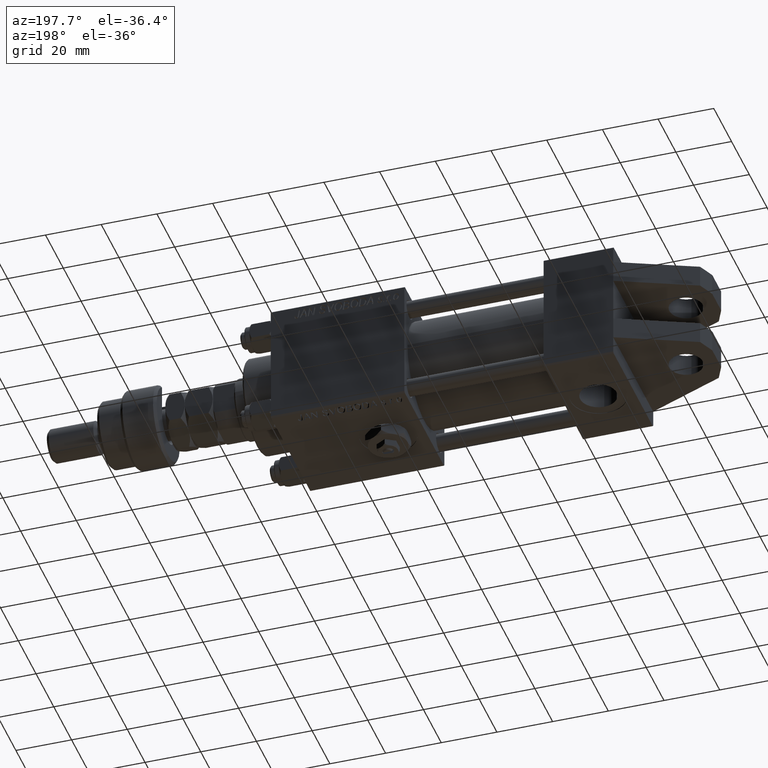
[diagram: clean part render]
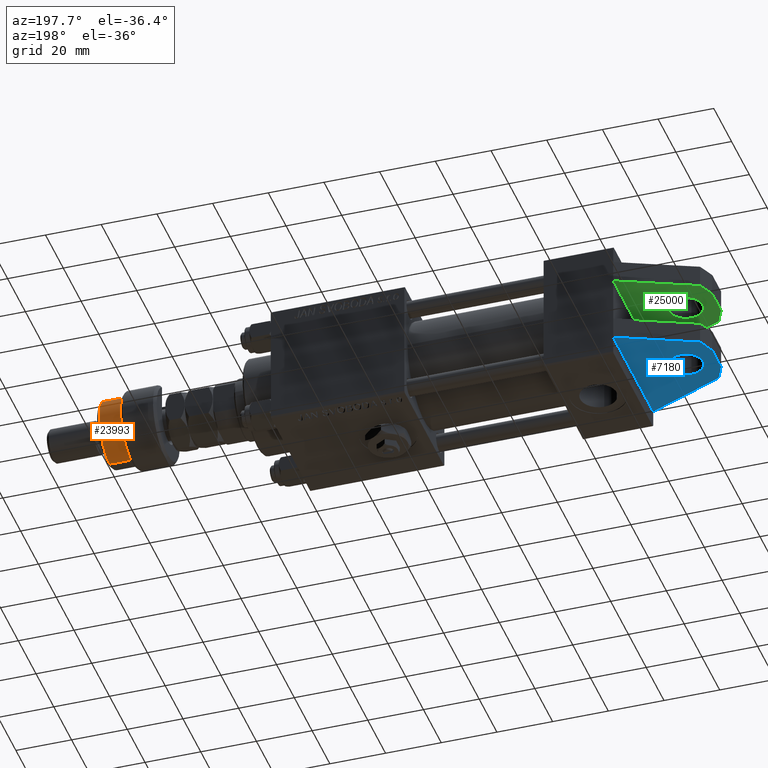
[diagram: same view with three faces highlighted in distinct colors, each labeled with its STEP entity id]
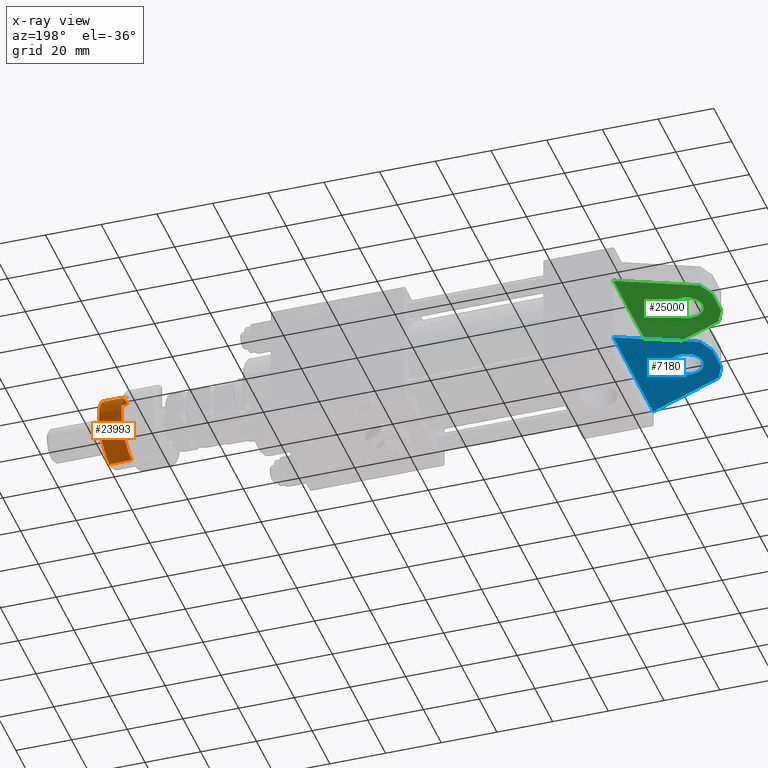
[diagram: x-ray of the same camera — body ghosted, the three highlighted faces saturated]
A machine part, auxiliary view with three faces highlighted in distinct colors.
The next image is the same camera in x-ray (body ghosted, the three faces saturated) — at least one of them is partly hidden behind the body in this view.
Their STEP definitions:

[orange] entity #23993 — the highlighted cylindrical surface (edge-blend (fillet) strip) has radius 12 mm, axis along (-1, -0, 0).
#3000 = DIRECTION ( 'NONE',  ( -1.000000000000000000, 0.000000000000000000, 0.000000000000000000 ) ) ;
#3278 = CARTESIAN_POINT ( 'NONE',  ( -12.00000000000000178, 0.000000000000000000, 14.50000000000000000 ) ) ;
#6423 = EDGE_CURVE ( 'NONE', #40618, #46117, #26278, .T. ) ;
#7847 = DIRECTION ( 'NONE',  ( 0.000000000000000000, 0.000000000000000000, 1.000000000000000000 ) ) ;
#8239 = CARTESIAN_POINT ( 'NONE',  ( -12.00000000000000178, 0.000000000000000000, 22.00000000000000000 ) ) ;
#8815 = ORIENTED_EDGE ( 'NONE', *, *, #39315, .T. ) ;
#10724 = CARTESIAN_POINT ( 'NONE',  ( 0.000000000000000000, 0.000000000000000000, 14.50000000000000000 ) ) ;
#12662 = EDGE_CURVE ( 'NONE', #51985, #25217, #40351, .T. ) ;
#12929 = VECTOR ( 'NONE', #46943, 1000.000000000000000 ) ;
#13317 = AXIS2_PLACEMENT_3D ( 'NONE', #41109, #33403, #50195 ) ;
#15080 = EDGE_CURVE ( 'NONE', #27127, #40618, #45705, .T. ) ;
#16241 = DIRECTION ( 'NONE',  ( -0.000000000000000000, -0.000000000000000000, -1.000000000000000000 ) ) ;
#17557 = AXIS2_PLACEMENT_3D ( 'NONE', #29369, #7847, #53884 ) ;
#19028 = CARTESIAN_POINT ( 'NONE',  ( 12.00000000000000178, 1.469576158976824144E-15, 20.99999999999998224 ) ) ;
#19768 = AXIS2_PLACEMENT_3D ( 'NONE', #10724, #40773, #3000 ) ;
#19875 = ORIENTED_EDGE ( 'NONE', *, *, #6423, .T. ) ;
#23442 = DIRECTION ( 'NONE',  ( -0.000000000000000000, -0.000000000000000000, -1.000000000000000000 ) ) ;
#23993 = ADVANCED_FACE ( 'NONE', ( #50469 ), #24859, .T. ) ;
#24302 = EDGE_CURVE ( 'NONE', #51985, #26829, #49850, .T. ) ;
#24859 = CYLINDRICAL_SURFACE ( 'NONE', #13317, 12.00000000000000178 ) ;
#25217 = VERTEX_POINT ( 'NONE', #19028 ) ;
#26131 = CARTESIAN_POINT ( 'NONE',  ( 12.00000000000000178, 1.469576158976824144E-15, 13.00000000000000000 ) ) ;
#26278 = LINE ( 'NONE', #50539, #12929 ) ;
#26829 = VERTEX_POINT ( 'NONE', #3278 ) ;
#27127 = VERTEX_POINT ( 'NONE', #26131 ) ;
#29192 = ORIENTED_EDGE ( 'NONE', *, *, #15080, .T. ) ;
#29200 = DIRECTION ( 'NONE',  ( 1.000000000000000000, 0.000000000000000000, 0.000000000000000000 ) ) ;
#29369 = CARTESIAN_POINT ( 'NONE',  ( 0.000000000000000000, 0.000000000000000000, 13.00000000000000000 ) ) ;
#31382 = EDGE_CURVE ( 'NONE', #26829, #46117, #36496, .T. ) ;
#32208 = ORIENTED_EDGE ( 'NONE', *, *, #12662, .T. ) ;
#33403 = DIRECTION ( 'NONE',  ( -0.000000000000000000, -0.000000000000000000, -1.000000000000000000 ) ) ;
#34777 = LINE ( 'NONE', #47425, #53399 ) ;
#36496 = CIRCLE ( 'NONE', #19768, 12.00000000000000178 ) ;
#37882 = EDGE_LOOP ( 'NONE', ( #32208, #8815, #29192, #19875, #39189, #52145 ) ) ;
#38627 = AXIS2_PLACEMENT_3D ( 'NONE', #45984, #41852, #29200 ) ;
#39189 = ORIENTED_EDGE ( 'NONE', *, *, #31382, .F. ) ;
#39315 = EDGE_CURVE ( 'NONE', #25217, #27127, #34777, .T. ) ;
#40351 = CIRCLE ( 'NONE', #38627, 12.00000000000000178 ) ;
#40618 = VERTEX_POINT ( 'NONE', #51219 ) ;
#40674 = VECTOR ( 'NONE', #16241, 1000.000000000000000 ) ;
#40773 = DIRECTION ( 'NONE',  ( 0.000000000000000000, 0.000000000000000000, -1.000000000000000000 ) ) ;
#41109 = CARTESIAN_POINT ( 'NONE',  ( 0.000000000000000000, 0.000000000000000000, 22.00000000000000000 ) ) ;
#41852 = DIRECTION ( 'NONE',  ( 0.000000000000000000, 0.000000000000000000, -1.000000000000000000 ) ) ;
#45705 = CIRCLE ( 'NONE', #17557, 12.00000000000000178 ) ;
#45984 = CARTESIAN_POINT ( 'NONE',  ( 0.000000000000000000, 0.000000000000000000, 20.99999999999998224 ) ) ;
#46117 = VERTEX_POINT ( 'NONE', #53810 ) ;
#46943 = DIRECTION ( 'NONE',  ( 0.000000000000000000, 0.000000000000000000, 1.000000000000000000 ) ) ;
#47425 = CARTESIAN_POINT ( 'NONE',  ( 12.00000000000000178, 1.469576158976824144E-15, 22.00000000000000000 ) ) ;
#49850 = LINE ( 'NONE', #8239, #40674 ) ;
#50195 = DIRECTION ( 'NONE',  ( -1.000000000000000000, 0.000000000000000000, 0.000000000000000000 ) ) ;
#50469 = FACE_OUTER_BOUND ( 'NONE', #37882, .T. ) ;
#50539 = CARTESIAN_POINT ( 'NONE',  ( -10.39230484541326760, 6.000000000000000000, 22.00000000000000000 ) ) ;
#51219 = CARTESIAN_POINT ( 'NONE',  ( -10.39230484541326760, 6.000000000000000000, 13.00000000000000000 ) ) ;
#51985 = VERTEX_POINT ( 'NONE', #53164 ) ;
#52145 = ORIENTED_EDGE ( 'NONE', *, *, #24302, .F. ) ;
#53164 = CARTESIAN_POINT ( 'NONE',  ( -12.00000000000000178, 0.000000000000000000, 20.99999999999998224 ) ) ;
#53399 = VECTOR ( 'NONE', #23442, 1000.000000000000000 ) ;
#53810 = CARTESIAN_POINT ( 'NONE',  ( -10.39230484541326582, 5.999999999999998224, 14.50000000000000000 ) ) ;
#53884 = DIRECTION ( 'NONE',  ( 1.000000000000000000, 0.000000000000000000, 0.000000000000000000 ) ) ;

[blue] entity #7180 — the highlighted planar face has unit normal (0, 0, -1).
#1801 = DIRECTION ( 'NONE',  ( 0.000000000000000000, 1.000000000000000000, 0.000000000000000000 ) ) ;
#2083 = PLANE ( 'NONE',  #40279 ) ;
#2707 = EDGE_CURVE ( 'NONE', #36032, #9502, #29290, .T. ) ;
#3918 = DIRECTION ( 'NONE',  ( 0.000000000000000000, 0.000000000000000000, -1.000000000000000000 ) ) ;
#4734 = CARTESIAN_POINT ( 'NONE',  ( 0.000000000000000000, 16.00000000000000000, 22.50000000000000000 ) ) ;
#5330 = EDGE_CURVE ( 'NONE', #10075, #18347, #21131, .T. ) ;
#5421 = CARTESIAN_POINT ( 'NONE',  ( 0.000000000000000000, 16.00000000000000000, 0.000000000000000000 ) ) ;
#5831 = CARTESIAN_POINT ( 'NONE',  ( -19.00000000000000000, 16.00000000000000000, -6.000000000000004441 ) ) ;
#6166 = CARTESIAN_POINT ( 'NONE',  ( 0.000000000000000000, 16.00000000000000000, -22.50000000000000711 ) ) ;
#6186 = EDGE_CURVE ( 'NONE', #15981, #36032, #27699, .T. ) ;
#7180 = ADVANCED_FACE ( 'NONE', ( #14223, #43174 ), #2083, .T. ) ;
#8341 = ORIENTED_EDGE ( 'NONE', *, *, #49210, .T. ) ;
#9502 = VERTEX_POINT ( 'NONE', #6166 ) ;
#9505 = DIRECTION ( 'NONE',  ( 0.000000000000000000, 1.000000000000000000, 0.000000000000000000 ) ) ;
#10075 = VERTEX_POINT ( 'NONE', #49130 ) ;
#11691 = VECTOR ( 'NONE', #30291, 1000.000000000000000 ) ;
#12336 = DIRECTION ( 'NONE',  ( -0.9186825547302631678, -0.000000000000000000, 0.3949966628141013958 ) ) ;
#12947 = ORIENTED_EDGE ( 'NONE', *, *, #2707, .T. ) ;
#13071 = ORIENTED_EDGE ( 'NONE', *, *, #39060, .F. ) ;
#13383 = DIRECTION ( 'NONE',  ( -0.4226182617406942232, -0.000000000000000000, 0.9063077870366523792 ) ) ;
#13783 = CIRCLE ( 'NONE', #44576, 6.000000000000000888 ) ;
#14223 = FACE_OUTER_BOUND ( 'NONE', #19184, .T. ) ;
#14611 = AXIS2_PLACEMENT_3D ( 'NONE', #34327, #9505, #29931 ) ;
#14898 = CARTESIAN_POINT ( 'NONE',  ( 0.000000000000000000, 16.00000000000000000, 22.50000000000000355 ) ) ;
#15013 = CARTESIAN_POINT ( 'NONE',  ( -19.00000000000000000, 16.00000000000000000, -3.469446951953614189E-15 ) ) ;
#15981 = VERTEX_POINT ( 'NONE', #30592 ) ;
#16769 = VECTOR ( 'NONE', #46906, 1000.000000000000000 ) ;
#17542 = EDGE_CURVE ( 'NONE', #28679, #15981, #51042, .T. ) ;
#17599 = VERTEX_POINT ( 'NONE', #5831 ) ;
#18347 = VERTEX_POINT ( 'NONE', #23805 ) ;
#19184 = EDGE_LOOP ( 'NONE', ( #25852, #31996, #12947, #8341, #20706, #53051 ) ) ;
#19197 = ORIENTED_EDGE ( 'NONE', *, *, #37746, .F. ) ;
#20706 = ORIENTED_EDGE ( 'NONE', *, *, #5330, .T. ) ;
#21131 = LINE ( 'NONE', #29410, #34909 ) ;
#23805 = CARTESIAN_POINT ( 'NONE',  ( -30.00000000000000000, 16.00000000000000000, -5.000000000000003553 ) ) ;
#24300 = CIRCLE ( 'NONE', #14611, 6.000000000000000888 ) ;
#25852 = ORIENTED_EDGE ( 'NONE', *, *, #17542, .T. ) ;
#27448 = DIRECTION ( 'NONE',  ( -0.000000000000000000, 1.000000000000000000, 0.000000000000000000 ) ) ;
#27699 = LINE ( 'NONE', #48089, #33213 ) ;
#28034 = EDGE_CURVE ( 'NONE', #18347, #28679, #34968, .T. ) ;
#28679 = VERTEX_POINT ( 'NONE', #44151 ) ;
#29290 = LINE ( 'NONE', #4734, #49791 ) ;
#29410 = CARTESIAN_POINT ( 'NONE',  ( -30.00000000000000000, 16.00000000000000000, -5.000000000000003553 ) ) ;
#29931 = DIRECTION ( 'NONE',  ( 0.000000000000000000, 0.000000000000000000, 1.000000000000000000 ) ) ;
#30291 = DIRECTION ( 'NONE',  ( 0.000000000000000000, 0.000000000000000000, 1.000000000000000000 ) ) ;
#30592 = CARTESIAN_POINT ( 'NONE',  ( -27.49177119113045720, 16.00000000000000000, 10.83363422253716735 ) ) ;
#31996 = ORIENTED_EDGE ( 'NONE', *, *, #6186, .T. ) ;
#33213 = VECTOR ( 'NONE', #44219, 999.9999999999998863 ) ;
#34327 = CARTESIAN_POINT ( 'NONE',  ( -19.00000000000000000, 16.00000000000000000, -3.469446951953614189E-15 ) ) ;
#34843 = EDGE_LOOP ( 'NONE', ( #19197, #13071 ) ) ;
#34909 = VECTOR ( 'NONE', #13383, 1000.000000000000000 ) ;
#34968 = LINE ( 'NONE', #51766, #11691 ) ;
#35441 = DIRECTION ( 'NONE',  ( 0.000000000000000000, 0.000000000000000000, 1.000000000000000000 ) ) ;
#36032 = VERTEX_POINT ( 'NONE', #14898 ) ;
#37746 = EDGE_CURVE ( 'NONE', #17599, #38347, #24300, .T. ) ;
#38347 = VERTEX_POINT ( 'NONE', #41943 ) ;
#38379 = CARTESIAN_POINT ( 'NONE',  ( -30.00000000000000000, 16.00000000000000000, 4.999999999999996447 ) ) ;
#39060 = EDGE_CURVE ( 'NONE', #38347, #17599, #13783, .T. ) ;
#40279 = AXIS2_PLACEMENT_3D ( 'NONE', #5421, #27448, #45047 ) ;
#41943 = CARTESIAN_POINT ( 'NONE',  ( -19.00000000000000000, 16.00000000000000000, 5.999999999999997335 ) ) ;
#43174 = FACE_BOUND ( 'NONE', #34843, .T. ) ;
#44151 = CARTESIAN_POINT ( 'NONE',  ( -30.00000000000000000, 16.00000000000000000, 4.999999999999996447 ) ) ;
#44219 = DIRECTION ( 'NONE',  ( 0.9205433724492674274, 0.000000000000000000, 0.3906403709804319724 ) ) ;
#44576 = AXIS2_PLACEMENT_3D ( 'NONE', #15013, #1801, #35441 ) ;
#45047 = DIRECTION ( 'NONE',  ( 0.000000000000000000, -0.000000000000000000, 1.000000000000000000 ) ) ;
#46906 = DIRECTION ( 'NONE',  ( 0.3949966628141011737, 0.000000000000000000, 0.9186825547302632788 ) ) ;
#48089 = CARTESIAN_POINT ( 'NONE',  ( -27.49177119113045720, 16.00000000000000000, 10.83363422253716735 ) ) ;
#49130 = CARTESIAN_POINT ( 'NONE',  ( -27.31637403794659136, 16.00000000000000000, -10.75505444768274543 ) ) ;
#49210 = EDGE_CURVE ( 'NONE', #9502, #10075, #54251, .T. ) ;
#49791 = VECTOR ( 'NONE', #3918, 1000.000000000000000 ) ;
#51042 = LINE ( 'NONE', #38379, #16769 ) ;
#51766 = CARTESIAN_POINT ( 'NONE',  ( -30.00000000000000000, 16.00000000000000000, -5.000000000000003553 ) ) ;
#53051 = ORIENTED_EDGE ( 'NONE', *, *, #28034, .T. ) ;
#53777 = VECTOR ( 'NONE', #12336, 1000.000000000000227 ) ;
#54251 = LINE ( 'NONE', #54522, #53777 ) ;
#54522 = CARTESIAN_POINT ( 'NONE',  ( -27.31637403794659136, 16.00000000000000000, -10.75505444768274543 ) ) ;

[green] entity #25000 — the highlighted planar face has unit normal (0, 0, 1).
#515 = EDGE_CURVE ( 'NONE', #15913, #554, #46733, .T. ) ;
#554 = VERTEX_POINT ( 'NONE', #26615 ) ;
#1348 = CARTESIAN_POINT ( 'NONE',  ( -30.00000000000000000, -8.000000000000000000, -5.000000000000003553 ) ) ;
#2099 = CARTESIAN_POINT ( 'NONE',  ( -27.31637403794659136, -8.000000000000000000, -10.75505444768274543 ) ) ;
#2966 = DIRECTION ( 'NONE',  ( -0.000000000000000000, 1.000000000000000000, -0.000000000000000000 ) ) ;
#4164 = VERTEX_POINT ( 'NONE', #18872 ) ;
#4355 = ORIENTED_EDGE ( 'NONE', *, *, #38016, .T. ) ;
#7582 = DIRECTION ( 'NONE',  ( 0.3949966628141011737, 0.000000000000000000, 0.9186825547302632788 ) ) ;
#8187 = CARTESIAN_POINT ( 'NONE',  ( 0.000000000000000000, -8.000000000000000000, -22.50000000000000711 ) ) ;
#8693 = EDGE_LOOP ( 'NONE', ( #19621, #41366 ) ) ;
#9606 = VERTEX_POINT ( 'NONE', #40883 ) ;
#11132 = VERTEX_POINT ( 'NONE', #29855 ) ;
#12379 = VECTOR ( 'NONE', #33520, 1000.000000000000000 ) ;
#12561 = DIRECTION ( 'NONE',  ( 0.000000000000000000, 0.000000000000000000, 1.000000000000000000 ) ) ;
#13996 = CARTESIAN_POINT ( 'NONE',  ( 0.000000000000000000, -8.000000000000000000, 22.50000000000000000 ) ) ;
#14069 = CIRCLE ( 'NONE', #38755, 6.000000000000000888 ) ;
#15447 = DIRECTION ( 'NONE',  ( -0.000000000000000000, 1.000000000000000000, -0.000000000000000000 ) ) ;
#15913 = VERTEX_POINT ( 'NONE', #1348 ) ;
#15998 = CARTESIAN_POINT ( 'NONE',  ( -19.00000000000000000, -8.000000000000000000, -3.469446951953614189E-15 ) ) ;
#16392 = VECTOR ( 'NONE', #41181, 1000.000000000000000 ) ;
#16425 = CARTESIAN_POINT ( 'NONE',  ( -30.00000000000000000, -8.000000000000000000, -5.000000000000003553 ) ) ;
#16588 = DIRECTION ( 'NONE',  ( 0.000000000000000000, -1.000000000000000000, 0.000000000000000000 ) ) ;
#17660 = ORIENTED_EDGE ( 'NONE', *, *, #48418, .T. ) ;
#17696 = CARTESIAN_POINT ( 'NONE',  ( -27.49177119113045720, -8.000000000000000000, 10.83363422253716735 ) ) ;
#18186 = EDGE_CURVE ( 'NONE', #11132, #15913, #37648, .T. ) ;
#18872 = CARTESIAN_POINT ( 'NONE',  ( -19.00000000000000000, -8.000000000000000000, 5.999999999999997335 ) ) ;
#19414 = LINE ( 'NONE', #13996, #16392 ) ;
#19621 = ORIENTED_EDGE ( 'NONE', *, *, #36083, .F. ) ;
#19722 = LINE ( 'NONE', #28551, #43150 ) ;
#20610 = EDGE_CURVE ( 'NONE', #37276, #4164, #14069, .T. ) ;
#20822 = EDGE_CURVE ( 'NONE', #554, #9606, #19722, .T. ) ;
#21565 = VERTEX_POINT ( 'NONE', #45599 ) ;
#22329 = EDGE_LOOP ( 'NONE', ( #35966, #28707, #4355, #17660, #33677, #49785 ) ) ;
#23188 = DIRECTION ( 'NONE',  ( 0.000000000000000000, 0.000000000000000000, 1.000000000000000000 ) ) ;
#23288 = VECTOR ( 'NONE', #12561, 1000.000000000000000 ) ;
#24208 = CARTESIAN_POINT ( 'NONE',  ( -19.00000000000000000, -8.000000000000000000, -3.469446951953614189E-15 ) ) ;
#25000 = ADVANCED_FACE ( 'NONE', ( #37547, #41668 ), #42208, .F. ) ;
#25143 = DIRECTION ( 'NONE',  ( 0.000000000000000000, 0.000000000000000000, 1.000000000000000000 ) ) ;
#26615 = CARTESIAN_POINT ( 'NONE',  ( -30.00000000000000000, -8.000000000000000000, 4.999999999999996447 ) ) ;
#28551 = CARTESIAN_POINT ( 'NONE',  ( -30.00000000000000000, -8.000000000000000000, 4.999999999999996447 ) ) ;
#28707 = ORIENTED_EDGE ( 'NONE', *, *, #40410, .T. ) ;
#29855 = CARTESIAN_POINT ( 'NONE',  ( -27.31637403794659136, -8.000000000000000000, -10.75505444768274543 ) ) ;
#31276 = CIRCLE ( 'NONE', #38310, 6.000000000000000888 ) ;
#33520 = DIRECTION ( 'NONE',  ( -0.4226182617406942232, 0.000000000000000000, 0.9063077870366523792 ) ) ;
#33677 = ORIENTED_EDGE ( 'NONE', *, *, #18186, .T. ) ;
#35966 = ORIENTED_EDGE ( 'NONE', *, *, #20822, .T. ) ;
#36083 = EDGE_CURVE ( 'NONE', #4164, #37276, #31276, .T. ) ;
#37276 = VERTEX_POINT ( 'NONE', #42389 ) ;
#37436 = DIRECTION ( 'NONE',  ( 0.000000000000000000, 0.000000000000000000, 1.000000000000000000 ) ) ;
#37547 = FACE_BOUND ( 'NONE', #8693, .T. ) ;
#37648 = LINE ( 'NONE', #16425, #12379 ) ;
#38016 = EDGE_CURVE ( 'NONE', #21565, #45463, #19414, .T. ) ;
#38310 = AXIS2_PLACEMENT_3D ( 'NONE', #15998, #15447, #23188 ) ;
#38755 = AXIS2_PLACEMENT_3D ( 'NONE', #24208, #2966, #37436 ) ;
#40410 = EDGE_CURVE ( 'NONE', #9606, #21565, #42227, .T. ) ;
#40883 = CARTESIAN_POINT ( 'NONE',  ( -27.49177119113045720, -8.000000000000000000, 10.83363422253716735 ) ) ;
#41181 = DIRECTION ( 'NONE',  ( 0.000000000000000000, 0.000000000000000000, -1.000000000000000000 ) ) ;
#41366 = ORIENTED_EDGE ( 'NONE', *, *, #20610, .F. ) ;
#41668 = FACE_OUTER_BOUND ( 'NONE', #22329, .T. ) ;
#42208 = PLANE ( 'NONE',  #52971 ) ;
#42227 = LINE ( 'NONE', #17696, #54322 ) ;
#42389 = CARTESIAN_POINT ( 'NONE',  ( -19.00000000000000000, -8.000000000000000000, -6.000000000000004441 ) ) ;
#42771 = DIRECTION ( 'NONE',  ( 0.9205433724492674274, 0.000000000000000000, 0.3906403709804319724 ) ) ;
#43150 = VECTOR ( 'NONE', #7582, 1000.000000000000000 ) ;
#45463 = VERTEX_POINT ( 'NONE', #8187 ) ;
#45599 = CARTESIAN_POINT ( 'NONE',  ( 0.000000000000000000, -8.000000000000000000, 22.50000000000000000 ) ) ;
#45919 = CARTESIAN_POINT ( 'NONE',  ( -30.00000000000000000, -8.000000000000000000, -5.000000000000003553 ) ) ;
#46733 = LINE ( 'NONE', #45919, #23288 ) ;
#48386 = DIRECTION ( 'NONE',  ( -0.9186825547302631678, 0.000000000000000000, 0.3949966628141013958 ) ) ;
#48418 = EDGE_CURVE ( 'NONE', #45463, #11132, #50237, .T. ) ;
#49785 = ORIENTED_EDGE ( 'NONE', *, *, #515, .T. ) ;
#50197 = VECTOR ( 'NONE', #48386, 1000.000000000000227 ) ;
#50237 = LINE ( 'NONE', #2099, #50197 ) ;
#52971 = AXIS2_PLACEMENT_3D ( 'NONE', #54349, #16588, #25143 ) ;
#54322 = VECTOR ( 'NONE', #42771, 999.9999999999998863 ) ;
#54349 = CARTESIAN_POINT ( 'NONE',  ( 0.000000000000000000, -8.000000000000000000, 0.000000000000000000 ) ) ;